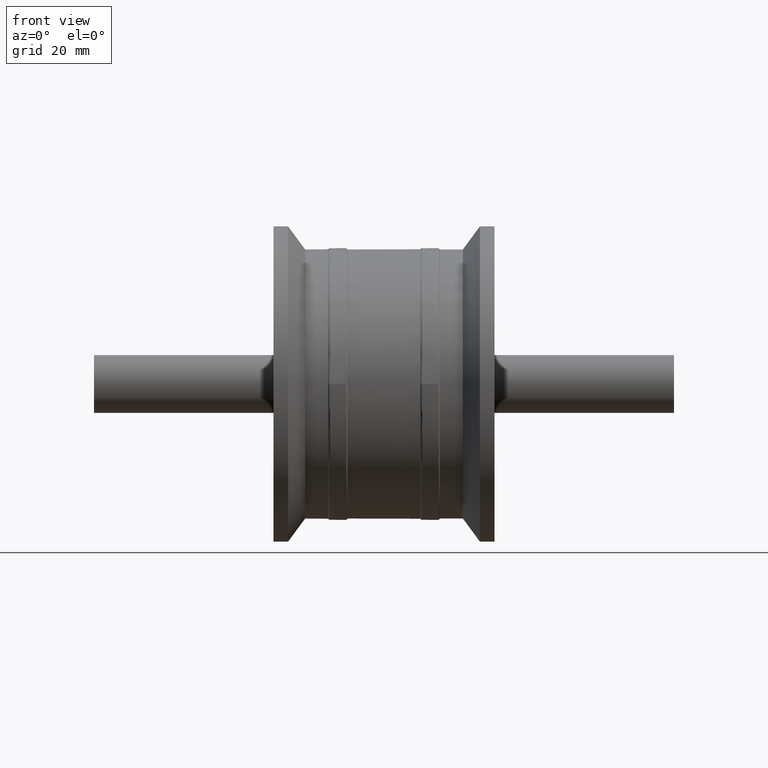
[diagram: clean part render]
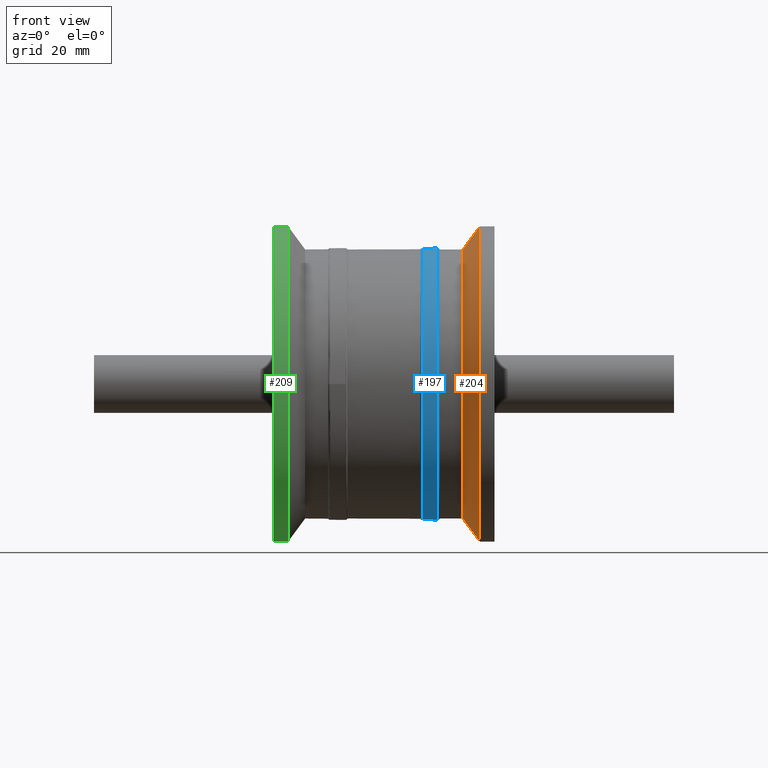
[diagram: same view with three faces highlighted in distinct colors, each labeled with its STEP entity id]
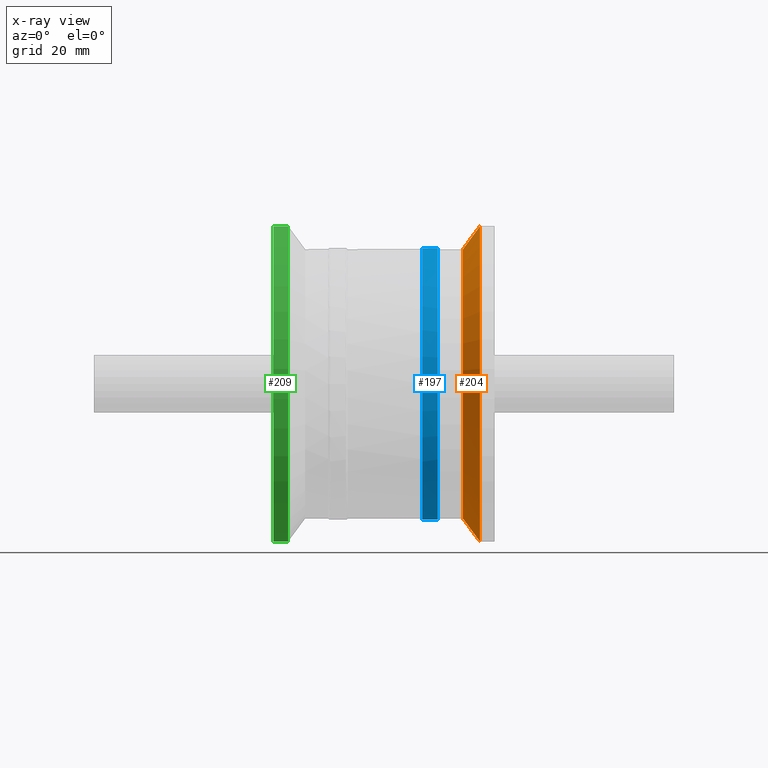
[diagram: x-ray of the same camera — body ghosted, the three highlighted faces saturated]
A machine part, front view with three faces highlighted in distinct colors.
The next image is the same camera in x-ray (body ghosted, the three faces saturated) — at least one of them is partly hidden behind the body in this view.
Their STEP definitions:

[orange] entity #204 — the highlighted conical surface has half-angle 53.616 deg.
#15=CONICAL_SURFACE('',#236,30.125,53.615648184164);
#38=FACE_BOUND('',#83,.T.);
#55=FACE_OUTER_BOUND('',#82,.T.);
#82=EDGE_LOOP('',(#172));
#83=EDGE_LOOP('',(#173));
#112=CIRCLE('',#235,32.5);
#113=CIRCLE('',#237,27.75);
#130=VERTEX_POINT('',#359);
#131=VERTEX_POINT('',#362);
#148=EDGE_CURVE('',#130,#130,#112,.T.);
#149=EDGE_CURVE('',#131,#131,#113,.T.);
#172=ORIENTED_EDGE('',*,*,#148,.F.);
#173=ORIENTED_EDGE('',*,*,#149,.T.);
#204=ADVANCED_FACE('',(#55,#38),#15,.T.);
#235=AXIS2_PLACEMENT_3D('',#360,#292,#293);
#236=AXIS2_PLACEMENT_3D('',#361,#294,#295);
#237=AXIS2_PLACEMENT_3D('',#363,#296,#297);
#292=DIRECTION('center_axis',(1.,3.16459002187477E-16,0.));
#293=DIRECTION('ref_axis',(0.,0.,-1.));
#294=DIRECTION('center_axis',(1.,3.16459002187477E-16,0.));
#295=DIRECTION('ref_axis',(-3.16459002187477E-16,1.,0.));
#296=DIRECTION('center_axis',(1.,3.16459002187477E-16,0.));
#297=DIRECTION('ref_axis',(0.,0.,-1.));
#359=CARTESIAN_POINT('',(19.75,32.5,0.));
#360=CARTESIAN_POINT('Origin',(19.75,6.25006529320267E-15,0.));
#361=CARTESIAN_POINT('Origin',(18.,5.69626203937459E-15,0.));
#362=CARTESIAN_POINT('',(16.25,27.75,0.));
#363=CARTESIAN_POINT('Origin',(16.25,5.1424587855465E-15,0.));

[blue] entity #197 — the highlighted cylindrical surface (bore or boss wall) has radius 28 mm, axis along (1, 0, 0).
#21=CYLINDRICAL_SURFACE('',#220,28.);
#31=FACE_BOUND('',#69,.T.);
#48=FACE_OUTER_BOUND('',#68,.T.);
#68=EDGE_LOOP('',(#158));
#69=EDGE_LOOP('',(#159));
#102=CIRCLE('',#218,28.);
#104=CIRCLE('',#221,28.);
#120=VERTEX_POINT('',#332);
#122=VERTEX_POINT('',#337);
#138=EDGE_CURVE('',#120,#120,#102,.T.);
#140=EDGE_CURVE('',#122,#122,#104,.T.);
#158=ORIENTED_EDGE('',*,*,#140,.F.);
#159=ORIENTED_EDGE('',*,*,#138,.F.);
#197=ADVANCED_FACE('',(#48,#31),#21,.T.);
#218=AXIS2_PLACEMENT_3D('',#333,#258,#259);
#220=AXIS2_PLACEMENT_3D('',#336,#262,#263);
#221=AXIS2_PLACEMENT_3D('',#338,#264,#265);
#258=DIRECTION('center_axis',(1.,3.22973970800045E-16,-1.19813571377914E-33));
#259=DIRECTION('ref_axis',(-3.22973970800045E-16,1.,-1.83905063098507E-16));
#262=DIRECTION('center_axis',(1.,3.16459002187477E-16,0.));
#263=DIRECTION('ref_axis',(-3.16459002187477E-16,1.,0.));
#264=DIRECTION('center_axis',(-1.,-3.22973970800045E-16,1.19813571377914E-33));
#265=DIRECTION('ref_axis',(-3.22973970800045E-16,1.,-1.83905063098507E-16));
#332=CARTESIAN_POINT('',(11.0669872981078,-28.,1.72033072914561E-15));
#333=CARTESIAN_POINT('Origin',(11.0669872981078,3.50224775758067E-15,-1.93483324518297E-49));
#336=CARTESIAN_POINT('Origin',(9.49999999999999,3.00636052078103E-15,0.));
#337=CARTESIAN_POINT('',(7.93301270189222,-28.,8.57835280437079E-15));
#338=CARTESIAN_POINT('Origin',(7.93301270189222,2.51047328398139E-15,-1.93483324518297E-49));

[green] entity #209 — the highlighted cylindrical surface (bore or boss wall) has radius 32.5 mm, axis along (1, 0, 0).
#26=CYLINDRICAL_SURFACE('',#245,32.5);
#42=FACE_BOUND('',#92,.T.);
#60=FACE_OUTER_BOUND('',#91,.T.);
#91=EDGE_LOOP('',(#181));
#92=EDGE_LOOP('',(#182));
#115=CIRCLE('',#243,32.5);
#117=CIRCLE('',#246,32.5);
#133=VERTEX_POINT('',#370);
#135=VERTEX_POINT('',#375);
#151=EDGE_CURVE('',#133,#133,#115,.T.);
#153=EDGE_CURVE('',#135,#135,#117,.T.);
#181=ORIENTED_EDGE('',*,*,#151,.T.);
#182=ORIENTED_EDGE('',*,*,#153,.F.);
#209=ADVANCED_FACE('',(#60,#42),#26,.T.);
#243=AXIS2_PLACEMENT_3D('',#371,#308,#309);
#245=AXIS2_PLACEMENT_3D('',#374,#312,#313);
#246=AXIS2_PLACEMENT_3D('',#376,#314,#315);
#308=DIRECTION('center_axis',(1.,3.16459002187477E-16,0.));
#309=DIRECTION('ref_axis',(0.,0.,-1.));
#312=DIRECTION('center_axis',(1.,3.16459002187477E-16,0.));
#313=DIRECTION('ref_axis',(-3.16459002187477E-16,1.,0.));
#314=DIRECTION('center_axis',(1.,3.16459002187477E-16,0.));
#315=DIRECTION('ref_axis',(0.,0.,-1.));
#370=CARTESIAN_POINT('',(-22.75,32.5,0.));
#371=CARTESIAN_POINT('Origin',(-22.75,-7.19944229976511E-15,0.));
#374=CARTESIAN_POINT('Origin',(-21.25,-6.72475379648389E-15,0.));
#375=CARTESIAN_POINT('',(-19.75,32.5,0.));
#376=CARTESIAN_POINT('Origin',(-19.75,-6.25006529320267E-15,0.));